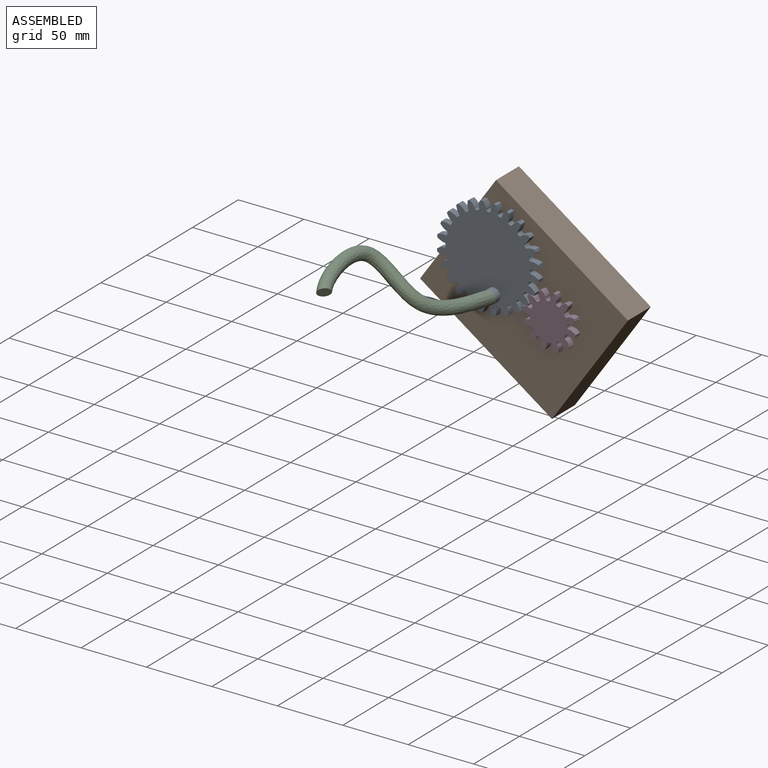
[diagram: assembled view]
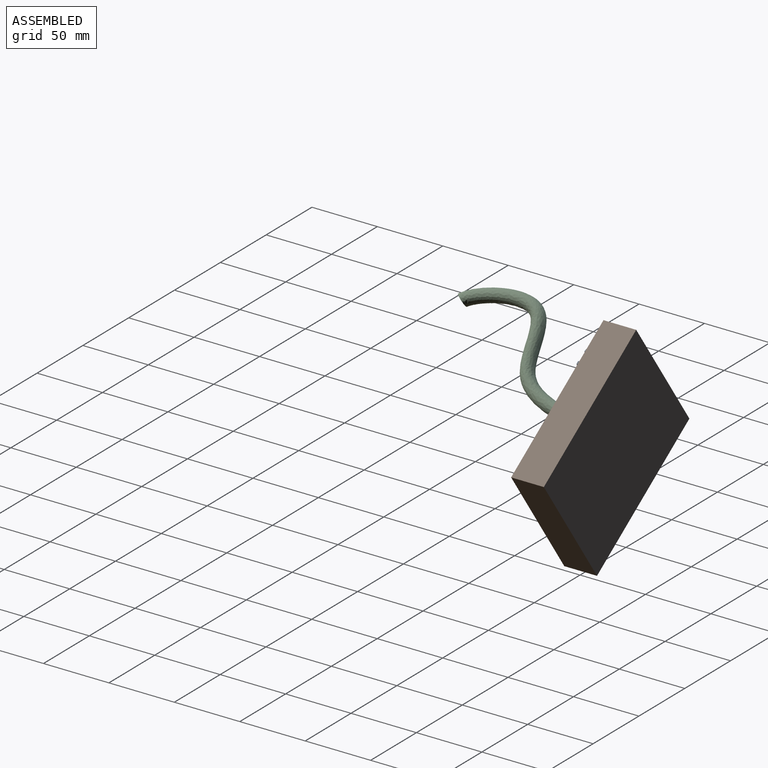
[diagram: assembled view, second angle]
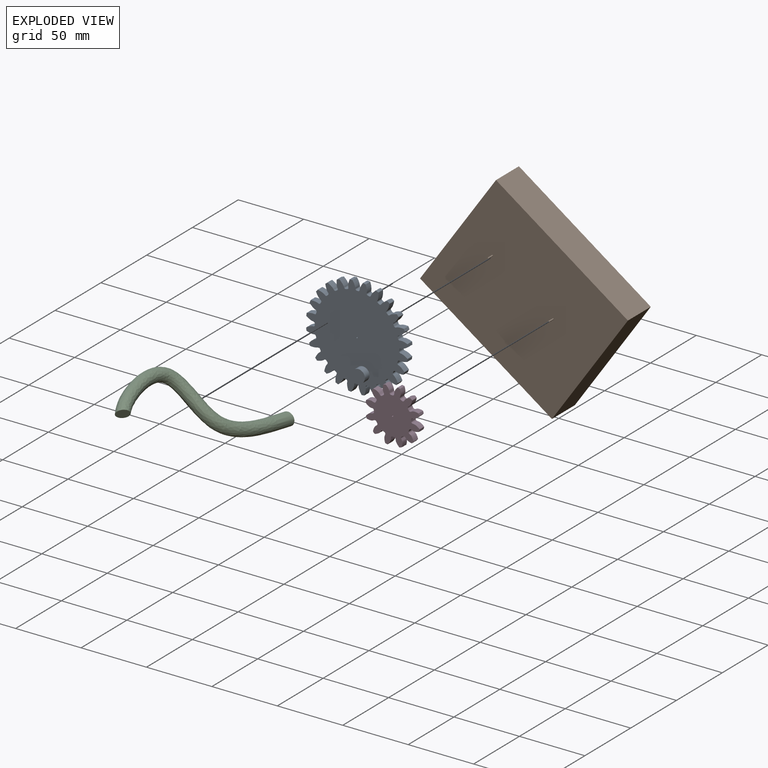
[diagram: exploded view]
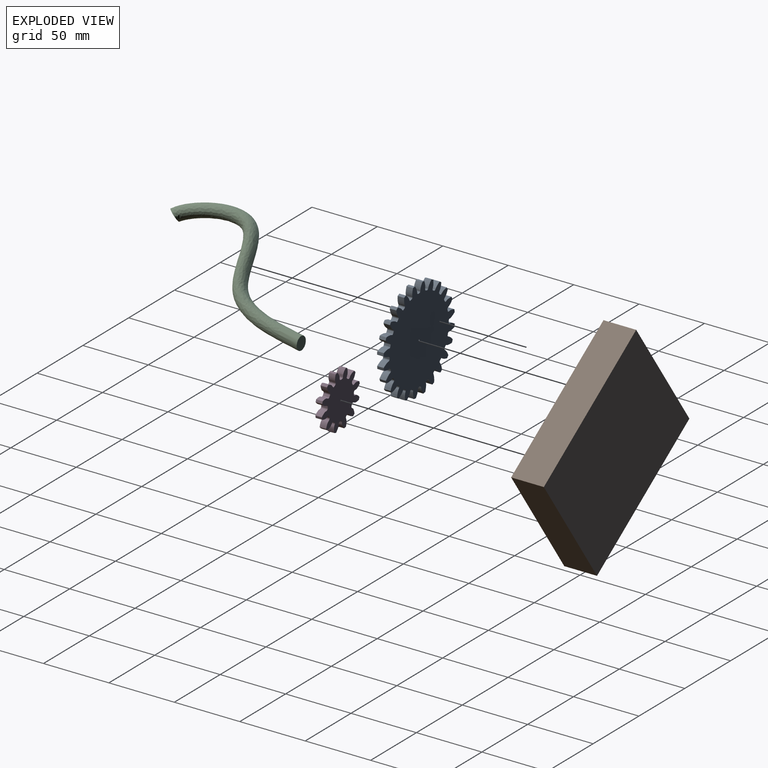
[diagram: exploded view, second angle]
ASSEMBLY  parts=4 mates=3
PART A: 149 faces, bbox 77.6x10x77.6 mm
  f0: cylinder r=39mm len=5mm, axis (0,1,0), area 10.7mm2, adj f23,f26,f122,f144
  f1: cylinder r=39mm len=5mm, axis (0,1,0), area 10.7mm2, adj f23,f26,f139,f142
  f2: cylinder r=39mm len=5mm, axis (0,1,0), area 10.7mm2, adj f23,f26,f127,f134
  f3: cylinder r=39mm len=5mm, axis (0,1,0), area 10.7mm2, adj f23,f26,f129,f137
  f4: cylinder r=39mm len=5mm, axis (0,1,0), area 10.7mm2, adj f23,f26,f117,f124
  f5: cylinder r=39mm len=5mm, axis (0,1,0), area 10.7mm2, adj f23,f26,f107,f119
  f6: cylinder r=39mm len=5mm, axis (0,1,0), area 10.7mm2, adj f23,f26,f102,f114
  f7: cylinder r=39mm len=5mm, axis (0,1,0), area 10.7mm2, adj f23,f26,f109,f112
  f8: cylinder r=39mm len=5mm, axis (0,1,0), area 10.7mm2, adj f23,f26,f97,f104
  f9: cylinder r=39mm len=5mm, axis (0,1,0), area 10.7mm2, adj f23,f26,f92,f99
  f10: cylinder r=39mm len=5mm, axis (0,1,0), area 10.7mm2, adj f23,f26,f87,f94
  f11: cylinder r=39mm len=5mm, axis (0,1,0), area 10.7mm2, adj f23,f26,f72,f89
  f12: cylinder r=39mm len=5mm, axis (0,1,0), area 10.7mm2, adj f23,f26,f27,f84
  f13: cylinder r=39mm len=5mm, axis (0,1,0), area 10.7mm2, adj f23,f26,f79,f82
  f14: cylinder r=39mm len=5mm, axis (0,1,0), area 10.7mm2, adj f23,f26,f67,f74
  f15: cylinder r=39mm len=5mm, axis (0,1,0), area 10.7mm2, adj f23,f26,f69,f77
  f16: cylinder r=39mm len=5mm, axis (0,1,0), area 10.7mm2, adj f23,f26,f52,f64
  f17: cylinder r=39mm len=5mm, axis (0,1,0), area 10.7mm2, adj f23,f26,f47,f59
  f18: cylinder r=39mm len=5mm, axis (0,1,0), area 10.7mm2, adj f23,f26,f54,f57
  f19: cylinder r=39mm len=5mm, axis (0,1,0), area 10.7mm2, adj f23,f26,f42,f49
  f20: cylinder r=39mm len=5mm, axis (0,1,0), area 10.7mm2, adj f23,f26,f37,f44
  f21: cylinder r=39mm len=5mm, axis (0,1,0), area 10.7mm2, adj f23,f26,f32,f39
  f22: cylinder r=39mm len=5mm, axis (0,1,0), area 10.7mm2, adj f23,f26,f34,f132
  f23: plane 77.6x77.6mm, normal (0,-1,0), area 3928.4mm2, adj f0,f1,f2,f3,f4,f5,f6,f7
  f24: cylinder r=0.5mm len=5mm, axis (0,1,0), area 15.7mm2, adj f23,f26
  f25: cylinder r=39mm len=5mm, axis (0,1,0), area 10.7mm2, adj f23,f26,f29,f62
  f26: plane 77.6x77.6mm, normal (0,1,0), area 4006.9mm2, adj f0,f1,f2,f3,f4,f5,f6,f7
  f27: extruded ~5.46x5mm, area 30.1mm2, adj f12,f23,f26,f30
  f28: cylinder r=32.25mm len=5mm, axis (0,1,0), area 5.2mm2, adj f23,f26,f30,f31
  f29: extruded ~5.46x5mm, area 30.1mm2, adj f23,f25,f26,f31
  f30: cylinder r=1.15mm len=5mm, axis (0,1,0), area 8.8mm2, adj f23,f26,f27,f28
  f31: cylinder r=1.15mm len=5mm, axis (0,1,0), area 8.8mm2, adj f23,f26,f28,f29
  f32: extruded ~5.88x5mm, area 30.1mm2, adj f21,f23,f26,f35
  f33: cylinder r=32.25mm len=5mm, axis (0,1,0), area 5.2mm2, adj f23,f26,f35,f36
  f34: extruded ~5x4.67mm, area 30.1mm2, adj f22,f23,f26,f36
  f35: cylinder r=1.15mm len=5mm, axis (0,1,0), area 8.8mm2, adj f23,f26,f32,f33
  f36: cylinder r=1.15mm len=5mm, axis (0,1,0), area 8.8mm2, adj f23,f26,f33,f34
  f37: extruded ~5.46x5mm, area 30.1mm2, adj f20,f23,f26,f40
  f38: cylinder r=32.25mm len=5mm, axis (0,1,0), area 5.2mm2, adj f23,f26,f40,f41
  f39: extruded ~5.46x5mm, area 30.1mm2, adj f21,f23,f26,f41
  f40: cylinder r=1.15mm len=5mm, axis (0,1,0), area 8.8mm2, adj f23,f26,f37,f38
  f41: cylinder r=1.15mm len=5mm, axis (0,1,0), area 8.8mm2, adj f23,f26,f38,f39
  f42: extruded ~5x4.67mm, area 30.1mm2, adj f19,f23,f26,f45
  f43: cylinder r=32.25mm len=5mm, axis (0,1,0), area 5.2mm2, adj f23,f26,f45,f46
  f44: extruded ~5.88x5mm, area 30.1mm2, adj f20,f23,f26,f46
  f45: cylinder r=1.15mm len=5mm, axis (0,1,0), area 8.8mm2, adj f23,f26,f42,f43
  f46: cylinder r=1.15mm len=5mm, axis (0,1,0), area 8.8mm2, adj f23,f26,f43,f44
  f47: extruded ~5x4.76mm, area 30.1mm2, adj f17,f23,f26,f50
  f48: cylinder r=32.25mm len=5mm, axis (0,1,0), area 5.2mm2, adj f23,f26,f50,f51
  f49: extruded ~5.9x5mm, area 30.1mm2, adj f19,f23,f26,f51
  f50: cylinder r=1.15mm len=5mm, axis (0,1,0), area 8.8mm2, adj f23,f26,f47,f48
  f51: cylinder r=1.15mm len=5mm, axis (0,1,0), area 8.8mm2, adj f23,f26,f48,f49
  f52: extruded ~5.9x5mm, area 30.1mm2, adj f16,f23,f26,f55
  f53: cylinder r=32.25mm len=5mm, axis (0,1,0), area 5.2mm2, adj f23,f26,f55,f56
  f54: extruded ~5x4.76mm, area 30.1mm2, adj f18,f23,f26,f56
  f55: cylinder r=1.15mm len=5mm, axis (0,1,0), area 8.8mm2, adj f23,f26,f52,f53
  f56: cylinder r=1.15mm len=5mm, axis (0,1,0), area 8.8mm2, adj f23,f26,f53,f54
  f57: extruded ~5.52x5mm, area 30.1mm2, adj f18,f23,f26,f60
  f58: cylinder r=32.25mm len=5mm, axis (0,1,0), area 5.2mm2, adj f23,f26,f60,f61
  f59: extruded ~5.52x5mm, area 30.1mm2, adj f17,f23,f26,f61
  f60: cylinder r=1.15mm len=5mm, axis (0,1,0), area 8.8mm2, adj f23,f26,f57,f58
  f61: cylinder r=1.15mm len=5mm, axis (0,1,0), area 8.8mm2, adj f23,f26,f58,f59
  f62: extruded ~5.88x5mm, area 30.1mm2, adj f23,f25,f26,f65
  f63: cylinder r=32.25mm len=5mm, axis (0,1,0), area 5.2mm2, adj f23,f26,f65,f66
  f64: extruded ~5x4.67mm, area 30.1mm2, adj f16,f23,f26,f66
  f65: cylinder r=1.15mm len=5mm, axis (0,1,0), area 8.8mm2, adj f23,f26,f62,f63
  f66: cylinder r=1.15mm len=5mm, axis (0,1,0), area 8.8mm2, adj f23,f26,f63,f64
  f67: extruded ~5.52x5mm, area 30.1mm2, adj f14,f23,f26,f70
  f68: cylinder r=32.25mm len=5mm, axis (0,1,0), area 5.2mm2, adj f23,f26,f70,f71
  f69: extruded ~5.52x5mm, area 30.1mm2, adj f15,f23,f26,f71
  f70: cylinder r=1.15mm len=5mm, axis (0,1,0), area 8.8mm2, adj f23,f26,f67,f68
  f71: cylinder r=1.15mm len=5mm, axis (0,1,0), area 8.8mm2, adj f23,f26,f68,f69
  f72: extruded ~5.9x5mm, area 30.1mm2, adj f11,f23,f26,f75
  f73: cylinder r=32.25mm len=5mm, axis (0,1,0), area 5.2mm2, adj f23,f26,f75,f76
  f74: extruded ~5x4.76mm, area 30.1mm2, adj f14,f23,f26,f76
  f75: cylinder r=1.15mm len=5mm, axis (0,1,0), area 8.8mm2, adj f23,f26,f72,f73
  f76: cylinder r=1.15mm len=5mm, axis (0,1,0), area 8.8mm2, adj f23,f26,f73,f74
  f77: extruded ~5x4.76mm, area 30.1mm2, adj f15,f23,f26,f80
  f78: cylinder r=32.25mm len=5mm, axis (0,1,0), area 5.2mm2, adj f23,f26,f80,f81
  f79: extruded ~5.9x5mm, area 30.1mm2, adj f13,f23,f26,f81
  f80: cylinder r=1.15mm len=5mm, axis (0,1,0), area 8.8mm2, adj f23,f26,f77,f78
  f81: cylinder r=1.15mm len=5mm, axis (0,1,0), area 8.8mm2, adj f23,f26,f78,f79
  f82: extruded ~5x4.67mm, area 30.1mm2, adj f13,f23,f26,f85
  f83: cylinder r=32.25mm len=5mm, axis (0,1,0), area 5.2mm2, adj f23,f26,f85,f86
  f84: extruded ~5.88x5mm, area 30.1mm2, adj f12,f23,f26,f86
  f85: cylinder r=1.15mm len=5mm, axis (0,1,0), area 8.8mm2, adj f23,f26,f82,f83
  f86: cylinder r=1.15mm len=5mm, axis (0,1,0), area 8.8mm2, adj f23,f26,f83,f84
  f87: extruded ~5.88x5mm, area 30.1mm2, adj f10,f23,f26,f90
  f88: cylinder r=32.25mm len=5mm, axis (0,1,0), area 5.2mm2, adj f23,f26,f90,f91
  f89: extruded ~5x4.67mm, area 30.1mm2, adj f11,f23,f26,f91
  f90: cylinder r=1.15mm len=5mm, axis (0,1,0), area 8.8mm2, adj f23,f26,f87,f88
  f91: cylinder r=1.15mm len=5mm, axis (0,1,0), area 8.8mm2, adj f23,f26,f88,f89
  f92: extruded ~5.46x5mm, area 30.1mm2, adj f9,f23,f26,f95
  f93: cylinder r=32.25mm len=5mm, axis (0,1,0), area 5.2mm2, adj f23,f26,f95,f96
  f94: extruded ~5.46x5mm, area 30.1mm2, adj f10,f23,f26,f96
  f95: cylinder r=1.15mm len=5mm, axis (0,1,0), area 8.8mm2, adj f23,f26,f92,f93
  f96: cylinder r=1.15mm len=5mm, axis (0,1,0), area 8.8mm2, adj f23,f26,f93,f94
  f97: extruded ~5x4.67mm, area 30.1mm2, adj f8,f23,f26,f100
  f98: cylinder r=32.25mm len=5mm, axis (0,1,0), area 5.2mm2, adj f23,f26,f100,f101
  f99: extruded ~5.88x5mm, area 30.1mm2, adj f9,f23,f26,f101
  f100: cylinder r=1.15mm len=5mm, axis (0,1,0), area 8.8mm2, adj f23,f26,f97,f98
  f101: cylinder r=1.15mm len=5mm, axis (0,1,0), area 8.8mm2, adj f23,f26,f98,f99
  f102: extruded ~5x4.76mm, area 30.1mm2, adj f6,f23,f26,f105
  f103: cylinder r=32.25mm len=5mm, axis (0,1,0), area 5.2mm2, adj f23,f26,f105,f106
  f104: extruded ~5.9x5mm, area 30.1mm2, adj f8,f23,f26,f106
  f105: cylinder r=1.15mm len=5mm, axis (0,1,0), area 8.8mm2, adj f23,f26,f102,f103
  f106: cylinder r=1.15mm len=5mm, axis (0,1,0), area 8.8mm2, adj f23,f26,f103,f104
  f107: extruded ~5.9x5mm, area 30.1mm2, adj f5,f23,f26,f110
  f108: cylinder r=32.25mm len=5mm, axis (0,1,0), area 5.2mm2, adj f23,f26,f110,f111
  f109: extruded ~5x4.76mm, area 30.1mm2, adj f7,f23,f26,f111
  f110: cylinder r=1.15mm len=5mm, axis (0,1,0), area 8.8mm2, adj f23,f26,f107,f108
  f111: cylinder r=1.15mm len=5mm, axis (0,1,0), area 8.8mm2, adj f23,f26,f108,f109
  f112: extruded ~5.52x5mm, area 30.1mm2, adj f7,f23,f26,f115
  f113: cylinder r=32.25mm len=5mm, axis (0,1,0), area 5.2mm2, adj f23,f26,f115,f116
  f114: extruded ~5.52x5mm, area 30.1mm2, adj f6,f23,f26,f116
  f115: cylinder r=1.15mm len=5mm, axis (0,1,0), area 8.8mm2, adj f23,f26,f112,f113
  f116: cylinder r=1.15mm len=5mm, axis (0,1,0), area 8.8mm2, adj f23,f26,f113,f114
  f117: extruded ~5.88x5mm, area 30.1mm2, adj f4,f23,f26,f120
  f118: cylinder r=32.25mm len=5mm, axis (0,1,0), area 5.2mm2, adj f23,f26,f120,f121
  f119: extruded ~5x4.67mm, area 30.1mm2, adj f5,f23,f26,f121
  f120: cylinder r=1.15mm len=5mm, axis (0,1,0), area 8.8mm2, adj f23,f26,f117,f118
  f121: cylinder r=1.15mm len=5mm, axis (0,1,0), area 8.8mm2, adj f23,f26,f118,f119
  f122: extruded ~5.46x5mm, area 30.1mm2, adj f0,f23,f26,f125
  f123: cylinder r=32.25mm len=5mm, axis (0,1,0), area 5.2mm2, adj f23,f26,f125,f126
  f124: extruded ~5.46x5mm, area 30.1mm2, adj f4,f23,f26,f126
  f125: cylinder r=1.15mm len=5mm, axis (0,1,0), area 8.8mm2, adj f23,f26,f122,f123
  f126: cylinder r=1.15mm len=5mm, axis (0,1,0), area 8.8mm2, adj f23,f26,f123,f124
  f127: extruded ~5.52x5mm, area 30.1mm2, adj f2,f23,f26,f130
  f128: cylinder r=32.25mm len=5mm, axis (0,1,0), area 5.2mm2, adj f23,f26,f130,f131
  f129: extruded ~5.52x5mm, area 30.1mm2, adj f3,f23,f26,f131
  f130: cylinder r=1.15mm len=5mm, axis (0,1,0), area 8.8mm2, adj f23,f26,f127,f128
  f131: cylinder r=1.15mm len=5mm, axis (0,1,0), area 8.8mm2, adj f23,f26,f128,f129
  f132: extruded ~5.9x5mm, area 30.1mm2, adj f22,f23,f26,f135
  f133: cylinder r=32.25mm len=5mm, axis (0,1,0), area 5.2mm2, adj f23,f26,f135,f136
  f134: extruded ~5x4.76mm, area 30.1mm2, adj f2,f23,f26,f136
  f135: cylinder r=1.15mm len=5mm, axis (0,1,0), area 8.8mm2, adj f23,f26,f132,f133
  f136: cylinder r=1.15mm len=5mm, axis (0,1,0), area 8.8mm2, adj f23,f26,f133,f134
  f137: extruded ~5x4.76mm, area 30.1mm2, adj f3,f23,f26,f140
  f138: cylinder r=32.25mm len=5mm, axis (0,1,0), area 5.2mm2, adj f23,f26,f140,f141
  f139: extruded ~5.9x5mm, area 30.1mm2, adj f1,f23,f26,f141
  f140: cylinder r=1.15mm len=5mm, axis (0,1,0), area 8.8mm2, adj f23,f26,f137,f138
  f141: cylinder r=1.15mm len=5mm, axis (0,1,0), area 8.8mm2, adj f23,f26,f138,f139
  f142: extruded ~5x4.67mm, area 30.1mm2, adj f1,f23,f26,f145
  f143: cylinder r=32.25mm len=5mm, axis (0,1,0), area 5.2mm2, adj f23,f26,f145,f146
  f144: extruded ~5.88x5mm, area 30.1mm2, adj f0,f23,f26,f146
  f145: cylinder r=1.15mm len=5mm, axis (0,1,0), area 8.8mm2, adj f23,f26,f142,f143
  f146: cylinder r=1.15mm len=5mm, axis (0,1,0), area 8.8mm2, adj f23,f26,f143,f144
  f147: cylinder r=5mm len=10mm, axis (0,1,0), area 157.1mm2, adj f23,f148
  f148: plane 10x10mm, normal (0,-1,0), area 78.5mm2, adj f147
PART B: 10 faces, bbox 122.8x101.7x30 mm
  f0: plane 101.67x25mm, normal (-1,0,0), area 2541.9mm2, adj f1,f3,f4,f5
  f1: plane 122.79x25mm, normal (0,-1,0), area 3069.6mm2, adj f0,f2,f4,f5
  f2: plane 101.67x25mm, normal (1,0,0), area 2541.9mm2, adj f1,f3,f4,f5
  f3: plane 122.79x25mm, normal (0,1,0), area 3069.6mm2, adj f0,f2,f4,f5
  f4: plane 122.79x101.67mm, normal (0,0,1), area 12482.5mm2, adj f0,f1,f2,f3,f6,f8
  f5: plane 122.79x101.67mm, normal (0,0,-1), area 12484.1mm2, adj f0,f1,f2,f3
  f6: cylinder r=0.53mm len=5mm, axis (0,0,-1), area 16.6mm2, adj f4,f7
  f7: plane 1.06x1.06mm, normal (0,0,1), area 0.9mm2, adj f6
  f8: cylinder r=0.5mm len=5mm, axis (0,0,-1), area 15.7mm2, adj f4,f9
  f9: plane 1x1mm, normal (0,0,1), area 0.8mm2, adj f8
PART C: 3 faces, bbox 77.5x20x128 mm
  f0: plane 10x10mm, normal (0,0,-1), area 78.5mm2, adj f2
  f1: plane 10x7.81mm, normal (-0.78,0,0.62), area 78.5mm2, adj f2
  f2: bspline ~128x77.52mm, area 5103.2mm2, adj f0,f1
PART D: 75 faces, bbox 42.1x5x42.1 mm
  f0: cylinder r=21mm len=5mm, axis (0,1,0), area 9.3mm2, adj f11,f14,f60,f72
  f1: cylinder r=21mm len=5mm, axis (0,1,0), area 9.3mm2, adj f11,f14,f67,f70
  f2: cylinder r=21mm len=5mm, axis (0,1,0), area 9.3mm2, adj f11,f14,f55,f62
  f3: cylinder r=21mm len=5mm, axis (0,1,0), area 9.3mm2, adj f11,f14,f50,f57
  f4: cylinder r=21mm len=5mm, axis (0,1,0), area 9.3mm2, adj f11,f14,f45,f52
  f5: cylinder r=21mm len=5mm, axis (0,1,0), area 9.3mm2, adj f11,f14,f35,f47
  f6: cylinder r=21mm len=5mm, axis (0,1,0), area 9.3mm2, adj f11,f14,f15,f42
  f7: cylinder r=21mm len=5mm, axis (0,1,0), area 9.3mm2, adj f11,f14,f37,f40
  f8: cylinder r=21mm len=5mm, axis (0,1,0), area 9.3mm2, adj f11,f14,f25,f32
  f9: cylinder r=21mm len=5mm, axis (0,1,0), area 9.3mm2, adj f11,f14,f20,f27
  f10: cylinder r=21mm len=5mm, axis (0,1,0), area 9.3mm2, adj f11,f14,f22,f65
  f11: plane 42.06x42.06mm, normal (0,-1,0), area 979.6mm2, adj f0,f1,f2,f3,f4,f5,f6,f7
  f12: cylinder r=0.5mm len=5mm, axis (0,1,0), area 15.7mm2, adj f11,f14
  f13: cylinder r=21mm len=5mm, axis (0,1,0), area 9.3mm2, adj f11,f14,f17,f30
  f14: plane 42.06x42.06mm, normal (0,1,0), area 979.6mm2, adj f0,f1,f2,f3,f4,f5,f6,f7
  f15: extruded ~5x4.28mm, area 30.2mm2, adj f6,f11,f14,f18
  f16: cylinder r=14.25mm len=5mm, axis (0,1,0), area 5.1mm2, adj f11,f14,f18,f19
  f17: extruded ~5.7x5mm, area 30.2mm2, adj f11,f13,f14,f19
  f18: cylinder r=1.24mm len=5mm, axis (0,1,0), area 9.3mm2, adj f11,f14,f15,f16
  f19: cylinder r=1.24mm len=5mm, axis (0,1,0), area 9.3mm2, adj f11,f14,f16,f17
  f20: extruded ~5x4.28mm, area 30.2mm2, adj f9,f11,f14,f23
  f21: cylinder r=14.25mm len=5mm, axis (0,1,0), area 5.1mm2, adj f11,f14,f23,f24
  f22: extruded ~5.7x5mm, area 30.2mm2, adj f10,f11,f14,f24
  f23: cylinder r=1.24mm len=5mm, axis (0,1,0), area 9.3mm2, adj f11,f14,f20,f21
  f24: cylinder r=1.24mm len=5mm, axis (0,1,0), area 9.3mm2, adj f11,f14,f21,f22
  f25: extruded ~5.6x5mm, area 30.2mm2, adj f8,f11,f14,f28
  f26: cylinder r=14.25mm len=5mm, axis (0,1,0), area 5.1mm2, adj f11,f14,f28,f29
  f27: extruded ~5.6x5mm, area 30.2mm2, adj f9,f11,f14,f29
  f28: cylinder r=1.24mm len=5mm, axis (0,1,0), area 9.3mm2, adj f11,f14,f25,f26
  f29: cylinder r=1.24mm len=5mm, axis (0,1,0), area 9.3mm2, adj f11,f14,f26,f27
  f30: extruded ~5.7x5mm, area 30.2mm2, adj f11,f13,f14,f33
  f31: cylinder r=14.25mm len=5mm, axis (0,1,0), area 5.1mm2, adj f11,f14,f33,f34
  f32: extruded ~5x4.28mm, area 30.2mm2, adj f8,f11,f14,f34
  f33: cylinder r=1.24mm len=5mm, axis (0,1,0), area 9.3mm2, adj f11,f14,f30,f31
  f34: cylinder r=1.24mm len=5mm, axis (0,1,0), area 9.3mm2, adj f11,f14,f31,f32
  f35: extruded ~5.7x5mm, area 30.2mm2, adj f5,f11,f14,f38
  f36: cylinder r=14.25mm len=5mm, axis (0,1,0), area 5.1mm2, adj f11,f14,f38,f39
  f37: extruded ~5x4.28mm, area 30.2mm2, adj f7,f11,f14,f39
  f38: cylinder r=1.24mm len=5mm, axis (0,1,0), area 9.3mm2, adj f11,f14,f35,f36
  f39: cylinder r=1.24mm len=5mm, axis (0,1,0), area 9.3mm2, adj f11,f14,f36,f37
  f40: extruded ~5.6x5mm, area 30.2mm2, adj f7,f11,f14,f43
  f41: cylinder r=14.25mm len=5mm, axis (0,1,0), area 5.1mm2, adj f11,f14,f43,f44
  f42: extruded ~5.6x5mm, area 30.2mm2, adj f6,f11,f14,f44
  f43: cylinder r=1.24mm len=5mm, axis (0,1,0), area 9.3mm2, adj f11,f14,f40,f41
  f44: cylinder r=1.24mm len=5mm, axis (0,1,0), area 9.3mm2, adj f11,f14,f41,f42
  f45: extruded ~5x4.28mm, area 30.2mm2, adj f4,f11,f14,f48
  f46: cylinder r=14.25mm len=5mm, axis (0,1,0), area 5.1mm2, adj f11,f14,f48,f49
  f47: extruded ~5.7x5mm, area 30.2mm2, adj f5,f11,f14,f49
  f48: cylinder r=1.24mm len=5mm, axis (0,1,0), area 9.3mm2, adj f11,f14,f45,f46
  f49: cylinder r=1.24mm len=5mm, axis (0,1,0), area 9.3mm2, adj f11,f14,f46,f47
  f50: extruded ~5.6x5mm, area 30.2mm2, adj f3,f11,f14,f53
  f51: cylinder r=14.25mm len=5mm, axis (0,1,0), area 5.1mm2, adj f11,f14,f53,f54
  f52: extruded ~5.6x5mm, area 30.2mm2, adj f4,f11,f14,f54
  f53: cylinder r=1.24mm len=5mm, axis (0,1,0), area 9.3mm2, adj f11,f14,f50,f51
  f54: cylinder r=1.24mm len=5mm, axis (0,1,0), area 9.3mm2, adj f11,f14,f51,f52
  f55: extruded ~5.7x5mm, area 30.2mm2, adj f2,f11,f14,f58
  f56: cylinder r=14.25mm len=5mm, axis (0,1,0), area 5.1mm2, adj f11,f14,f58,f59
  f57: extruded ~5x4.28mm, area 30.2mm2, adj f3,f11,f14,f59
  f58: cylinder r=1.24mm len=5mm, axis (0,1,0), area 9.3mm2, adj f11,f14,f55,f56
  f59: cylinder r=1.24mm len=5mm, axis (0,1,0), area 9.3mm2, adj f11,f14,f56,f57
  f60: extruded ~5x4.28mm, area 30.2mm2, adj f0,f11,f14,f63
  f61: cylinder r=14.25mm len=5mm, axis (0,1,0), area 5.1mm2, adj f11,f14,f63,f64
  f62: extruded ~5.7x5mm, area 30.2mm2, adj f2,f11,f14,f64
  f63: cylinder r=1.24mm len=5mm, axis (0,1,0), area 9.3mm2, adj f11,f14,f60,f61
  f64: cylinder r=1.24mm len=5mm, axis (0,1,0), area 9.3mm2, adj f11,f14,f61,f62
  f65: extruded ~5.7x5mm, area 30.2mm2, adj f10,f11,f14,f68
  f66: cylinder r=14.25mm len=5mm, axis (0,1,0), area 5.1mm2, adj f11,f14,f68,f69
  f67: extruded ~5x4.28mm, area 30.2mm2, adj f1,f11,f14,f69
  f68: cylinder r=1.24mm len=5mm, axis (0,1,0), area 9.3mm2, adj f11,f14,f65,f66
  f69: cylinder r=1.24mm len=5mm, axis (0,1,0), area 9.3mm2, adj f11,f14,f66,f67
  f70: extruded ~5.6x5mm, area 30.2mm2, adj f1,f11,f14,f73
  f71: cylinder r=14.25mm len=5mm, axis (0,1,0), area 5.1mm2, adj f11,f14,f73,f74
  f72: extruded ~5.6x5mm, area 30.2mm2, adj f0,f11,f14,f74
  f73: cylinder r=1.24mm len=5mm, axis (0,1,0), area 9.3mm2, adj f11,f14,f70,f71
  f74: cylinder r=1.24mm len=5mm, axis (0,1,0), area 9.3mm2, adj f11,f14,f71,f72
PLACE A rot(axis=(0,-1,0),134.3deg) t=(56.62,-60.51,100.84)mm
PLACE B rot(axis=(0.91,0.29,-0.29),95.1deg) t=(70.59,-35.51,70.73)mm fixed
PLACE C rot(axis=(0.29,-0.68,0.68),148.1deg) t=(61.21,-70.51,77.12)mm
PLACE D rot(axis=(-0.99,0,0.11),180deg) t=(103.01,-65.51,69.46)mm
MATE revolute B.f6 <-> A.f0  axis (0,-1,0) through (56.62,-65.51,100.84)mm
MATE fastened C.f0 <-> A.f147  axis (0,1,0) through (61.21,-70.51,77.12)mm
MATE revolute D.f0 <-> B.f8  axis (0,-1,0) through (103.01,-65.51,69.46)mm
